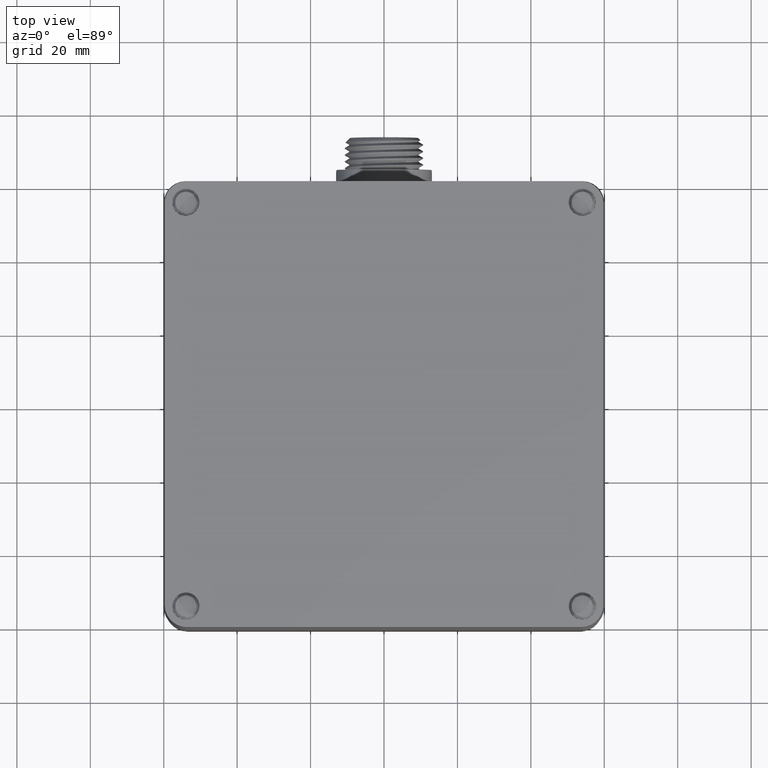
[diagram: clean part render]
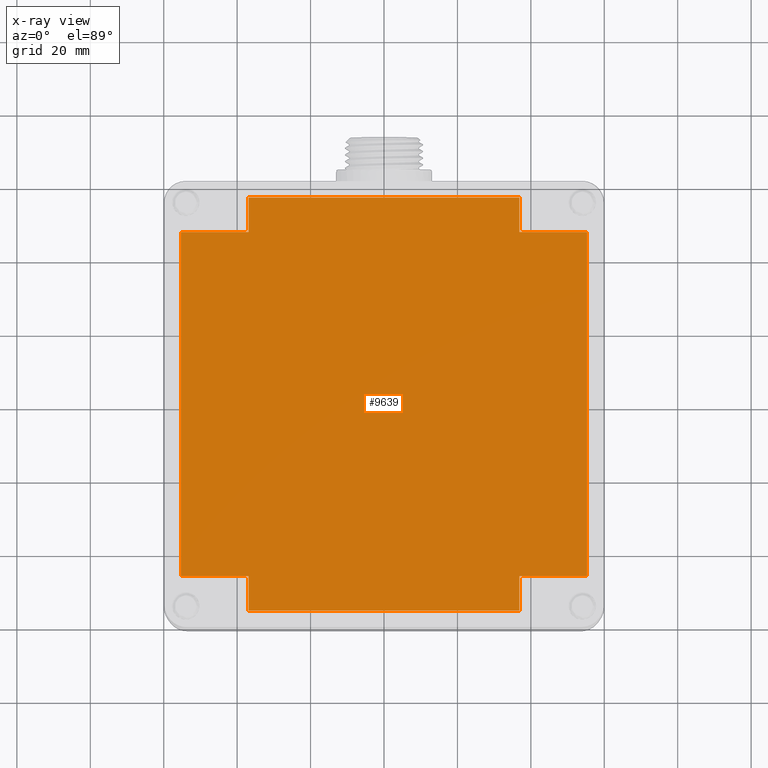
[diagram: x-ray — body ghosted, one internal face saturated and labeled with its STEP entity id]
A machine part, top view, then the same camera in x-ray: the body is ghosted and one INTERNAL B-rep face — a face not visible from any outside direction — is saturated and labeled: STEP entity #9639.
In plain terms, the highlighted planar face has unit normal (-0, 0, -1).
Its self-contained STEP definition (entity closure, byte-faithful):
#56 = EDGE_CURVE ( 'NONE', #9649, #31922, #6972, .T. ) ;
#857 = EDGE_CURVE ( 'NONE', #31922, #28638, #18051, .T. ) ;
#1585 = ORIENTED_EDGE ( 'NONE', *, *, #19344, .F. ) ;
#2265 = VECTOR ( 'NONE', #3116, 39.37007874015748143 ) ;
#2954 = LINE ( 'NONE', #5764, #9515 ) ;
#3116 = DIRECTION ( 'NONE',  ( -1.000000000000000000, 6.263700336807060180E-16, 1.093332960698611914E-17 ) ) ;
#3333 = VECTOR ( 'NONE', #4731, 39.37007874015748143 ) ;
#3698 = CARTESIAN_POINT ( 'NONE',  ( 1.452398914233500093, -2.216162961445578894, 0.4724409452061102965 ) ) ;
#3879 = VERTEX_POINT ( 'NONE', #14588 ) ;
#4193 = ORIENTED_EDGE ( 'NONE', *, *, #8002, .F. ) ;
#4731 = DIRECTION ( 'NONE',  ( -1.000000000000000000, 3.180425752887350394E-16, 5.551453801602749025E-18 ) ) ;
#4924 = ORIENTED_EDGE ( 'NONE', *, *, #5506, .F. ) ;
#4988 = CARTESIAN_POINT ( 'NONE',  ( -1.452286140371539469, -1.846084221295633876, 0.4724409449897150060 ) ) ;
#5011 = CARTESIAN_POINT ( 'NONE',  ( 1.452398938486726410, 2.216162961458618241, 0.4724409444589173779 ) ) ;
#5177 = EDGE_CURVE ( 'NONE', #23795, #9092, #32033, .T. ) ;
#5334 = ORIENTED_EDGE ( 'NONE', *, *, #31510, .F. ) ;
#5383 = EDGE_CURVE ( 'NONE', #18802, #8690, #9240, .T. ) ;
#5506 = EDGE_CURVE ( 'NONE', #12777, #3879, #33765, .T. ) ;
#5764 = CARTESIAN_POINT ( 'NONE',  ( -1.452398914233602234, 2.216162961445578894, 0.4724409452061102965 ) ) ;
#6363 = ORIENTED_EDGE ( 'NONE', *, *, #5383, .F. ) ;
#6614 = CARTESIAN_POINT ( 'NONE',  ( -1.752777496957803161, 2.216162961451236590, 0.4724409448818898127 ) ) ;
#6972 = LINE ( 'NONE', #9777, #26266 ) ;
#7489 = ORIENTED_EDGE ( 'NONE', *, *, #28543, .F. ) ;
#7535 = CARTESIAN_POINT ( 'NONE',  ( 1.452398900302563023, -2.216162961449823054, 0.4724409449629448643 ) ) ;
#7830 = LINE ( 'NONE', #13620, #22851 ) ;
#8002 = EDGE_CURVE ( 'NONE', #9092, #17125, #14327, .T. ) ;
#8034 = DIRECTION ( 'NONE',  ( 0.0003046792618657454790, -0.9999999535852727162, -8.760854477820806425E-10 ) ) ;
#8155 = FACE_OUTER_BOUND ( 'NONE', #24249, .T. ) ;
#8389 = DIRECTION ( 'NONE',  ( 1.000000000000000000, -3.287172459282449830E-16, 5.737780870702478672E-18 ) ) ;
#8690 = VERTEX_POINT ( 'NONE', #24975 ) ;
#9033 = EDGE_CURVE ( 'NONE', #3879, #14267, #32581, .T. ) ;
#9092 = VERTEX_POINT ( 'NONE', #26074 ) ;
#9240 = LINE ( 'NONE', #6614, #17397 ) ;
#9482 = EDGE_CURVE ( 'NONE', #28638, #18802, #22922, .T. ) ;
#9489 = VECTOR ( 'NONE', #33167, 39.37007874015748143 ) ;
#9515 = VECTOR ( 'NONE', #8034, 39.37007874015747433 ) ;
#9639 = ADVANCED_FACE ( 'NONE', ( #8155 ), #13421, .T. ) ;
#9649 = VERTEX_POINT ( 'NONE', #29022 ) ;
#9752 = DIRECTION ( 'NONE',  ( -0.0003046792688617971120, -0.9999999535852704957, 4.754695972950941573E-10 ) ) ;
#9777 = CARTESIAN_POINT ( 'NONE',  ( 2.176792882711031663, 2.225196833386165363, 0.4724409448818898127 ) ) ;
#10488 = CARTESIAN_POINT ( 'NONE',  ( 2.176792882711027666, 1.846084206786444915, 0.4724409448818898127 ) ) ;
#10640 = DIRECTION ( 'NONE',  ( 1.000000000000000000, -6.267169995030110263E-16, 1.093938591794249877E-17 ) ) ;
#10789 = CARTESIAN_POINT ( 'NONE',  ( -1.452286158922702963, 1.846084246929224459, 0.4724409446582574779 ) ) ;
#12572 = CARTESIAN_POINT ( 'NONE',  ( 1.452286158922600379, -1.846084246929224459, 0.4724409446582574779 ) ) ;
#12777 = VERTEX_POINT ( 'NONE', #4988 ) ;
#13421 = PLANE ( 'NONE',  #32096 ) ;
#13620 = CARTESIAN_POINT ( 'NONE',  ( 1.379010837906319065, -1.846084221309370221, 0.4724409439873606398 ) ) ;
#14224 = DIRECTION ( 'NONE',  ( -0.0003046792618657454790, 0.9999999535852727162, -8.760850786919457182E-10 ) ) ;
#14267 = VERTEX_POINT ( 'NONE', #7535 ) ;
#14327 = LINE ( 'NONE', #16409, #31443 ) ;
#14588 = CARTESIAN_POINT ( 'NONE',  ( -1.452398896833655417, -2.216162961445937274, 0.4724409451855213216 ) ) ;
#14821 = VECTOR ( 'NONE', #14224, 39.37007874015747433 ) ;
#15177 = CARTESIAN_POINT ( 'NONE',  ( 1.452286223465325099, 1.846084206796763771, 0.4724409445064196578 ) ) ;
#16409 = CARTESIAN_POINT ( 'NONE',  ( -2.176792882710409494, 2.225196850298984064, 0.4724409449229906022 ) ) ;
#16646 = CARTESIAN_POINT ( 'NONE',  ( -1.752777496957834691, -2.216162961451236590, 0.4724409448818898127 ) ) ;
#17125 = VERTEX_POINT ( 'NONE', #30173 ) ;
#17306 = DIRECTION ( 'NONE',  ( -1.000000000000000000, 1.595502165196024930E-16, 2.784959388660849710E-18 ) ) ;
#17386 = LINE ( 'NONE', #27580, #9489 ) ;
#17397 = VECTOR ( 'NONE', #17306, 39.37007874015748143 ) ;
#17483 = CARTESIAN_POINT ( 'NONE',  ( 1.452286158933375981, 1.846084206823956686, 0.4724409433800102476 ) ) ;
#17981 = DIRECTION ( 'NONE',  ( 0.0003046792462231045964, 0.9999999535852773791, 1.772414805481715749E-09 ) ) ;
#18051 = LINE ( 'NONE', #28754, #3333 ) ;
#18324 = CARTESIAN_POINT ( 'NONE',  ( 2.612151459017704624, -2.659395553742275542, 0.4724409448818898127 ) ) ;
#18354 = CARTESIAN_POINT ( 'NONE',  ( -2.258314690148633730, 1.846084221309366002, 0.4724409439873606398 ) ) ;
#18802 = VERTEX_POINT ( 'NONE', #5011 ) ;
#19344 = EDGE_CURVE ( 'NONE', #8690, #23795, #2954, .T. ) ;
#20628 = VECTOR ( 'NONE', #8389, 39.37007874015748143 ) ;
#22851 = VECTOR ( 'NONE', #10640, 39.37007874015748143 ) ;
#22922 = LINE ( 'NONE', #17483, #28753 ) ;
#23241 = ORIENTED_EDGE ( 'NONE', *, *, #9033, .F. ) ;
#23553 = VECTOR ( 'NONE', #9752, 39.37007874015748143 ) ;
#23795 = VERTEX_POINT ( 'NONE', #10789 ) ;
#24116 = DIRECTION ( 'NONE',  ( -1.874114760824149837E-16, 1.314872256205039883E-17, -1.000000000000000000 ) ) ;
#24249 = EDGE_LOOP ( 'NONE', ( #30249, #27589, #7489, #5334, #23241, #4924, #28782, #4193, #29889, #1585, #6363, #26673 ) ) ;
#24302 = DIRECTION ( 'NONE',  ( -2.609514053721435283E-16, -1.000000000000000000, 4.554923723880759082E-18 ) ) ;
#24434 = EDGE_CURVE ( 'NONE', #17125, #12777, #17386, .T. ) ;
#24975 = CARTESIAN_POINT ( 'NONE',  ( -1.452398900302661389, 2.216162961449819058, 0.4724409449629448643 ) ) ;
#26074 = CARTESIAN_POINT ( 'NONE',  ( -2.176792880952208797, 1.846084221301563133, 0.4724409444449008122 ) ) ;
#26266 = VECTOR ( 'NONE', #33788, 39.37007874015748143 ) ;
#26673 = ORIENTED_EDGE ( 'NONE', *, *, #9482, .F. ) ;
#27580 = CARTESIAN_POINT ( 'NONE',  ( -2.258314693667559325, -1.846084221293756045, 0.4724409448818898127 ) ) ;
#27589 = ORIENTED_EDGE ( 'NONE', *, *, #56, .F. ) ;
#28543 = EDGE_CURVE ( 'NONE', #33575, #9649, #7830, .T. ) ;
#28638 = VERTEX_POINT ( 'NONE', #15177 ) ;
#28753 = VECTOR ( 'NONE', #17981, 39.37007874015748854 ) ;
#28754 = CARTESIAN_POINT ( 'NONE',  ( 1.379010932465677186, 1.846084206782681036, 0.4724409448818898127 ) ) ;
#28782 = ORIENTED_EDGE ( 'NONE', *, *, #24434, .F. ) ;
#29022 = CARTESIAN_POINT ( 'NONE',  ( 2.176792882714932986, -1.846084221297657368, 0.4724409446582574779 ) ) ;
#29637 = LINE ( 'NONE', #3698, #14821 ) ;
#29889 = ORIENTED_EDGE ( 'NONE', *, *, #5177, .F. ) ;
#30173 = CARTESIAN_POINT ( 'NONE',  ( -2.176792881533070823, -1.846084221295637651, 0.4724409449024409846 ) ) ;
#30249 = ORIENTED_EDGE ( 'NONE', *, *, #857, .F. ) ;
#31443 = VECTOR ( 'NONE', #24302, 39.37007874015748143 ) ;
#31510 = EDGE_CURVE ( 'NONE', #14267, #33575, #29637, .T. ) ;
#31650 = DIRECTION ( 'NONE',  ( -1.000000000000000000, 0.000000000000000000, 1.874114760824149837E-16 ) ) ;
#31922 = VERTEX_POINT ( 'NONE', #10488 ) ;
#32033 = LINE ( 'NONE', #18354, #2265 ) ;
#32096 = AXIS2_PLACEMENT_3D ( 'NONE', #18324, #24116, #31650 ) ;
#32581 = LINE ( 'NONE', #16646, #20628 ) ;
#33167 = DIRECTION ( 'NONE',  ( 1.000000000000000000, -3.182160101103019834E-16, 5.554481117673759561E-18 ) ) ;
#33575 = VERTEX_POINT ( 'NONE', #12572 ) ;
#33591 = CARTESIAN_POINT ( 'NONE',  ( -1.452286158903492330, -1.846084221293748051, 0.4724409453131913628 ) ) ;
#33765 = LINE ( 'NONE', #33591, #23553 ) ;
#33788 = DIRECTION ( 'NONE',  ( 3.141924615194599798E-16, 1.000000000000000000, 5.484249815778839600E-18 ) ) ;